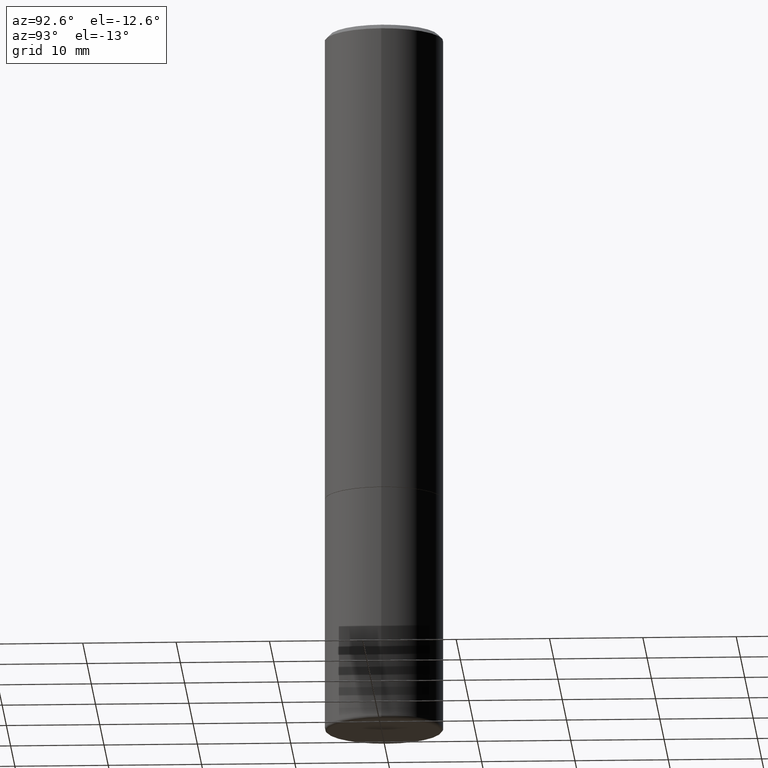
[diagram: clean part render]
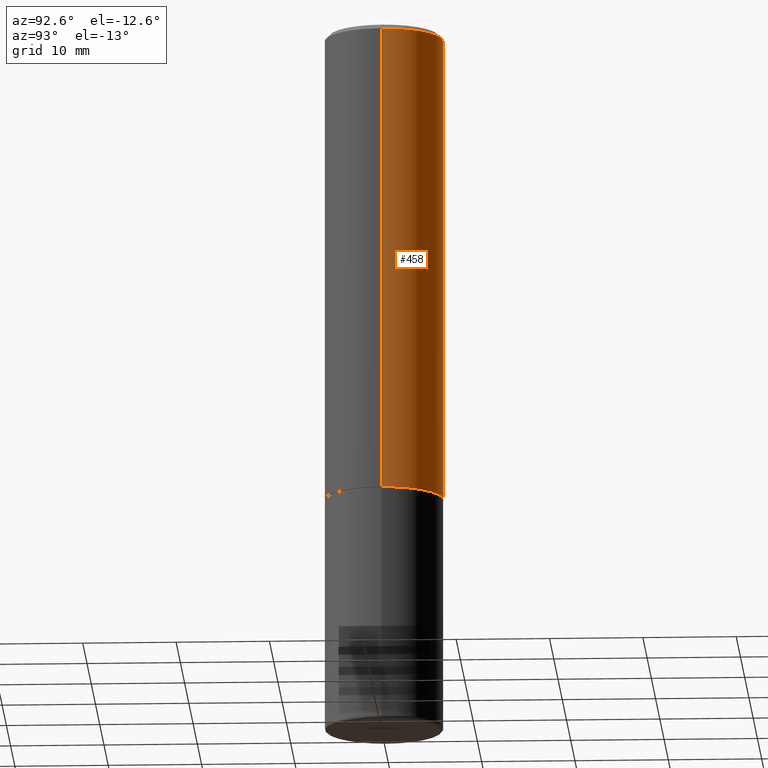
[diagram: same view with one face highlighted and labeled with its STEP entity id]
A machine part, auxiliary view. The second image highlights one B-rep face of the part: STEP entity #458.
In plain terms, the highlighted cylindrical surface (partial cylindrical patch) has radius 6.35 mm, axis along (-0, 0, 1).
Its self-contained STEP definition (entity closure, byte-faithful):
#7 = ORIENTED_EDGE ( 'NONE', *, *, #385, .F. ) ;
#43 = VERTEX_POINT ( 'NONE', #177 ) ;
#71 = VERTEX_POINT ( 'NONE', #97 ) ;
#72 = LINE ( 'NONE', #226, #360 ) ;
#91 = DIRECTION ( 'NONE',  ( -2.445468806185136597E-29, 3.491481338843145583E-15, 1.000000000000000000 ) ) ;
#97 = CARTESIAN_POINT ( 'NONE',  ( -0.2499999999999993061, 1.675911042644698449E-15, -0.02000000000000010797 ) ) ;
#167 = CARTESIAN_POINT ( 'NONE',  ( 0.2499999999999993061, -1.784954126219741456E-15, -0.02000000000000010797 ) ) ;
#169 = EDGE_CURVE ( 'NONE', #43, #71, #186, .T. ) ;
#177 = CARTESIAN_POINT ( 'NONE',  ( -0.2500000000000000000, -1.748293572161900530E-15, -1.999000000000000110 ) ) ;
#184 = DIRECTION ( 'NONE',  ( -2.445468806185136877E-29, 3.491481338843145188E-15, 1.000000000000000000 ) ) ;
#186 = LINE ( 'NONE', #291, #233 ) ;
#196 = AXIS2_PLACEMENT_3D ( 'NONE', #280, #388, #229 ) ;
#205 = EDGE_LOOP ( 'NONE', ( #386, #237, #7, #389 ) ) ;
#221 = AXIS2_PLACEMENT_3D ( 'NONE', #303, #91, #316 ) ;
#226 = CARTESIAN_POINT ( 'NONE',  ( 0.2499999999999996669, -1.745740669421564311E-15, 1.219044193948982267E-29 ) ) ;
#229 = DIRECTION ( 'NONE',  ( 1.000000000000000000, -6.982962677686266711E-15, 0.000000000000000000 ) ) ;
#233 = VECTOR ( 'NONE', #184, 39.37007874015748143 ) ;
#237 = ORIENTED_EDGE ( 'NONE', *, *, #169, .T. ) ;
#244 = CYLINDRICAL_SURFACE ( 'NONE', #279, 0.2499999999999996669 ) ;
#269 = VERTEX_POINT ( 'NONE', #450 ) ;
#279 = AXIS2_PLACEMENT_3D ( 'NONE', #394, #397, #456 ) ;
#280 = CARTESIAN_POINT ( 'NONE',  ( 4.888492143564088712E-29, -6.979471196347448158E-15, -1.999000000000000110 ) ) ;
#290 = EDGE_CURVE ( 'NONE', #269, #347, #72, .T. ) ;
#291 = CARTESIAN_POINT ( 'NONE',  ( -0.2499999999999996669, 1.776356839400248098E-15, -1.229733772563724764E-29 ) ) ;
#296 = CIRCLE ( 'NONE', #221, 0.2499999999999993061 ) ;
#303 = CARTESIAN_POINT ( 'NONE',  ( 4.890937612370299433E-31, -6.982962677686328587E-17, -0.02000000000000010797 ) ) ;
#316 = DIRECTION ( 'NONE',  ( 1.000000000000000000, -6.982962677686267499E-15, 0.000000000000000000 ) ) ;
#321 = CIRCLE ( 'NONE', #196, 0.2500000000000000000 ) ;
#347 = VERTEX_POINT ( 'NONE', #167 ) ;
#360 = VECTOR ( 'NONE', #373, 39.37007874015748143 ) ;
#373 = DIRECTION ( 'NONE',  ( -2.445468806185136877E-29, 3.491481338843145188E-15, 1.000000000000000000 ) ) ;
#385 = EDGE_CURVE ( 'NONE', #347, #71, #296, .T. ) ;
#386 = ORIENTED_EDGE ( 'NONE', *, *, #419, .T. ) ;
#388 = DIRECTION ( 'NONE',  ( -2.445468806185136597E-29, 3.491481338843145583E-15, 1.000000000000000000 ) ) ;
#389 = ORIENTED_EDGE ( 'NONE', *, *, #290, .F. ) ;
#394 = CARTESIAN_POINT ( 'NONE',  ( 0.000000000000000000, 0.000000000000000000, 0.000000000000000000 ) ) ;
#397 = DIRECTION ( 'NONE',  ( -2.445468806185136597E-29, 3.491481338843145583E-15, 1.000000000000000000 ) ) ;
#419 = EDGE_CURVE ( 'NONE', #269, #43, #321, .T. ) ;
#422 = FACE_OUTER_BOUND ( 'NONE', #205, .T. ) ;
#450 = CARTESIAN_POINT ( 'NONE',  ( 0.2500000000000000000, -8.725211865769015625E-15, -1.999000000000000110 ) ) ;
#456 = DIRECTION ( 'NONE',  ( 1.000000000000000000, -6.982962677686266711E-15, 4.876176775795935793E-29 ) ) ;
#458 = ADVANCED_FACE ( 'NONE', ( #422 ), #244, .T. ) ;